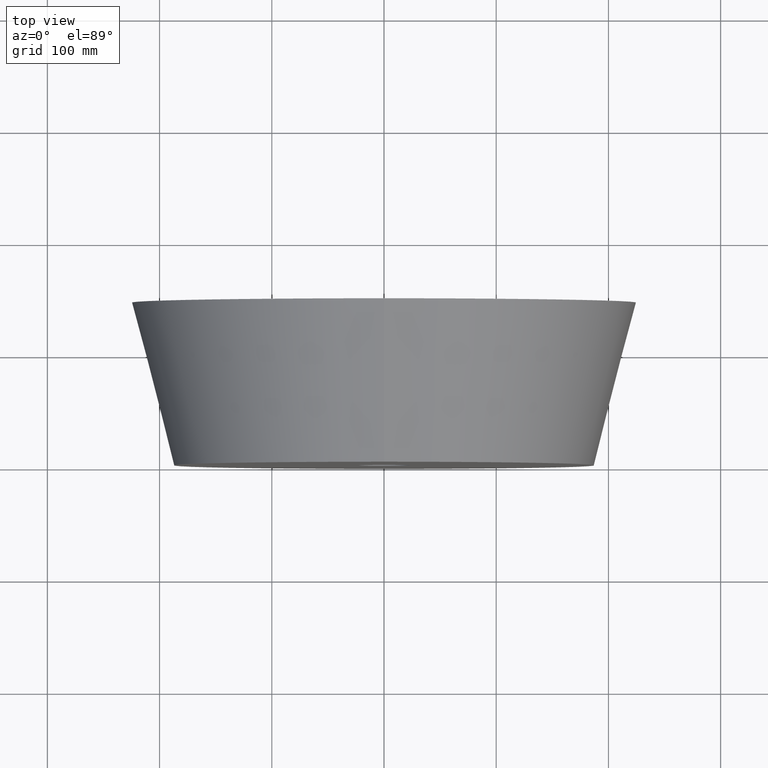
[diagram: clean part render]
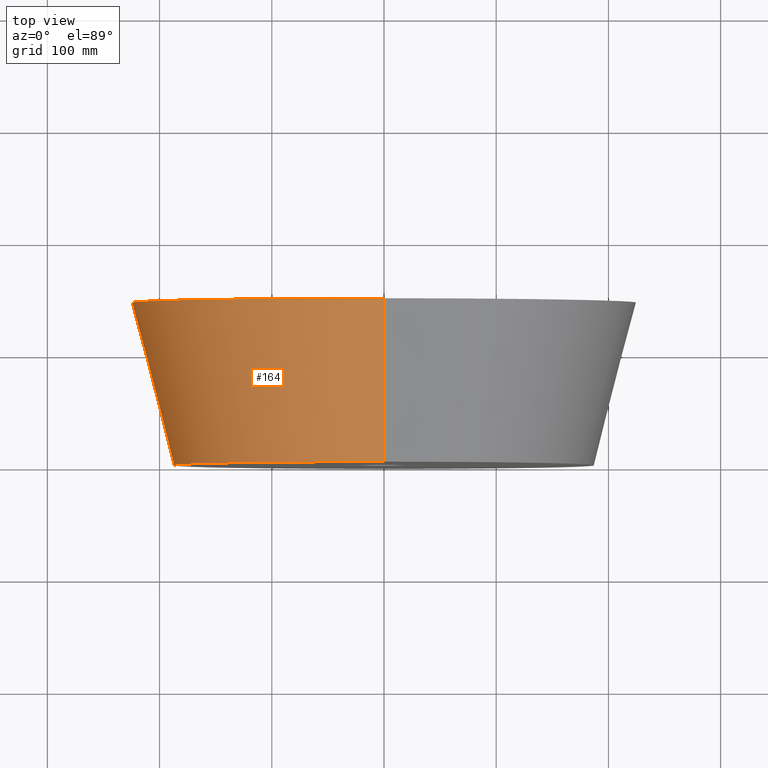
[diagram: same view with one face highlighted and labeled with its STEP entity id]
A machine part, top view. The second image highlights one B-rep face of the part: STEP entity #164.
In plain terms, the highlighted conical surface has half-angle 14.5 deg.
Its self-contained STEP definition (entity closure, byte-faithful):
#2 = EDGE_CURVE ( 'NONE', #60, #239, #303, .T. ) ;
#17 = VERTEX_POINT ( 'NONE', #246 ) ;
#20 = DIRECTION ( 'NONE',  ( 0.0000000000000000000, 1.000000000000000000, 0.0000000000000000000 ) ) ;
#23 = CARTESIAN_POINT ( 'NONE',  ( 2.755455298081544900E-014, 144.9999999999999400, -225.0000000000000300 ) ) ;
#29 = DIRECTION ( 'NONE',  ( 3.066305214852269800E-017, 0.9681469116116011600, -0.2503828219685178500 ) ) ;
#42 = AXIS2_PLACEMENT_3D ( 'NONE', #76, #159, #186 ) ;
#44 = ORIENTED_EDGE ( 'NONE', *, *, #310, .F. ) ;
#46 = CIRCLE ( 'NONE', #42, 187.5000000000000000 ) ;
#54 = ORIENTED_EDGE ( 'NONE', *, *, #134, .T. ) ;
#60 = VERTEX_POINT ( 'NONE', #279 ) ;
#71 = CONICAL_SURFACE ( 'NONE', #297, 225.0000000000000300, 0.2530756521646025900 ) ;
#76 = CARTESIAN_POINT ( 'NONE',  ( 0.0000000000000000000, -2.081668171172168500E-014, 0.0000000000000000000 ) ) ;
#88 = CARTESIAN_POINT ( 'NONE',  ( 0.0000000000000000000, 144.9999999999999400, 225.0000000000000300 ) ) ;
#101 = VECTOR ( 'NONE', #225, 1000.000000000000200 ) ;
#122 = DIRECTION ( 'NONE',  ( 0.0000000000000000000, 0.0000000000000000000, 1.000000000000000000 ) ) ;
#134 = EDGE_CURVE ( 'NONE', #239, #17, #181, .T. ) ;
#150 = EDGE_LOOP ( 'NONE', ( #307, #44, #302, #54 ) ) ;
#159 = DIRECTION ( 'NONE',  ( -0.0000000000000000000, -1.000000000000000000, -0.0000000000000000000 ) ) ;
#164 = ADVANCED_FACE ( 'NONE', ( #251 ), #71, .T. ) ;
#181 = CIRCLE ( 'NONE', #263, 225.0000000000000300 ) ;
#186 = DIRECTION ( 'NONE',  ( 0.0000000000000000000, 0.0000000000000000000, -1.000000000000000000 ) ) ;
#225 = DIRECTION ( 'NONE',  ( 0.0000000000000000000, 0.9681469116116011600, 0.2503828219685178500 ) ) ;
#239 = VERTEX_POINT ( 'NONE', #88 ) ;
#243 = DIRECTION ( 'NONE',  ( -0.0000000000000000000, -1.000000000000000000, -0.0000000000000000000 ) ) ;
#246 = CARTESIAN_POINT ( 'NONE',  ( 2.755455298081544900E-014, 144.9999999999999400, -225.0000000000000300 ) ) ;
#251 = FACE_OUTER_BOUND ( 'NONE', #150, .T. ) ;
#253 = CARTESIAN_POINT ( 'NONE',  ( 0.0000000000000000000, 144.9999999999999400, 225.0000000000000300 ) ) ;
#256 = CARTESIAN_POINT ( 'NONE',  ( 2.525834023241416200E-014, -2.081668171172168500E-014, -187.5000000000000000 ) ) ;
#260 = DIRECTION ( 'NONE',  ( 0.0000000000000000000, 0.0000000000000000000, -1.000000000000000000 ) ) ;
#263 = AXIS2_PLACEMENT_3D ( 'NONE', #288, #243, #260 ) ;
#278 = CARTESIAN_POINT ( 'NONE',  ( 0.0000000000000000000, 144.9999999999999400, 0.0000000000000000000 ) ) ;
#279 = CARTESIAN_POINT ( 'NONE',  ( 0.0000000000000000000, -2.081668171172168500E-014, 187.5000000000000000 ) ) ;
#281 = EDGE_CURVE ( 'NONE', #309, #17, #328, .T. ) ;
#288 = CARTESIAN_POINT ( 'NONE',  ( 0.0000000000000000000, 144.9999999999999400, 0.0000000000000000000 ) ) ;
#297 = AXIS2_PLACEMENT_3D ( 'NONE', #278, #20, #122 ) ;
#302 = ORIENTED_EDGE ( 'NONE', *, *, #2, .T. ) ;
#303 = LINE ( 'NONE', #253, #101 ) ;
#307 = ORIENTED_EDGE ( 'NONE', *, *, #281, .F. ) ;
#309 = VERTEX_POINT ( 'NONE', #256 ) ;
#310 = EDGE_CURVE ( 'NONE', #60, #309, #46, .T. ) ;
#314 = VECTOR ( 'NONE', #29, 1000.000000000000200 ) ;
#328 = LINE ( 'NONE', #23, #314 ) ;